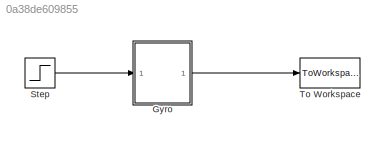
MODEL slx_0a38de609855
KIND model
CONFIG AbsTol = auto
CONFIG EnableMultiTasking = off
CONFIG FixedStep = auto
CONFIG MaxStep = auto
CONFIG MinStep = auto
CONFIG RelTol = 1e-3
CONFIG SampleTimeConstraint = Unconstrained
CONFIG Solver = VariableStepAuto
CONFIG SolverName = VariableStepAuto
CONFIG StartTime = 0.0
CONFIG StopTime = 10.0
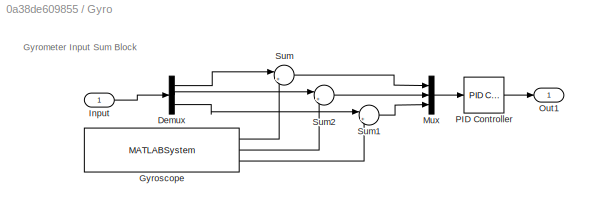
BLOCK [SubSystem] Gyro
  Ports = [1, 1]
  RequestExecContextInheritance = off
  Variant = off
BLOCK [Demux] Gyro/Demux
  DisplayOption = bar
  Outputs = 3
  Ports = [1, 3]
BLOCK [MATLABSystem] Gyro/Gyroscope
  DLPFmode = 0
  MaskDisplay = disp('soMPU6050Gyro');\nport_label('output',1,'xvel');\nport_label('output',2,'yvel');\nport_label('output',3,'zvel');
  MaskType = soMPU6050Gyro
  Ports = [0, 3]
  System = soMPU6050Gyro
BLOCK [Inport] Gyro/Input
  IconDisplay = Port number
BLOCK [Mux] Gyro/Mux
  DisplayOption = bar
  Inputs = 3
  Ports = [3, 1]
BLOCK [Outport] Gyro/Out1
  IconDisplay = Port number
BLOCK [Reference] Gyro/PID Controller  REF=simulink/Continuous/PID Controller
  Ports = [1, 1]
  SourceBlock = simulink/Continuous/PID Controller
  SourceProductBaseCode = SL
  SourceProductName = Simulink
  SourceType = PID 1dof
BLOCK [Sum] Gyro/Sum
  IconShape = round
  InputSameDT = off
  Inputs = |+-
  OutDataTypeStr = Inherit: Inherit via internal rule
  Ports = [2, 1]
  SaturateOnIntegerOverflow = off
BLOCK [Sum] Gyro/Sum1
  IconShape = round
  InputSameDT = off
  Inputs = |+-
  OutDataTypeStr = Inherit: Inherit via internal rule
  Ports = [2, 1]
  SaturateOnIntegerOverflow = off
BLOCK [Sum] Gyro/Sum2
  IconShape = round
  InputSameDT = off
  Inputs = |+-
  OutDataTypeStr = Inherit: Inherit via internal rule
  Ports = [2, 1]
  SaturateOnIntegerOverflow = off
BLOCK [Step] Step
  After = [1 2 3]
  SampleTime = 0
  Time = 5
BLOCK [ToWorkspace] To Workspace
  FixptAsFi = on
  MaxDataPoints = inf
  Ports = [1]
  SampleTime = -1
  Save2DSignal = 3-D array (concatenate along third dimension)
  SaveFormat = Timeseries
  VariableName = simout
ANNOTATION Gyro: Gyrometer Input Sum Block
LINE Gyro/Demux:1 -> Gyro/Sum:1
LINE Gyro/Demux:2 -> Gyro/Sum2:1
LINE Gyro/Demux:3 -> Gyro/Sum1:1
LINE Gyro/Gyroscope:1 -> Gyro/Sum:2
LINE Gyro/Gyroscope:2 -> Gyro/Sum2:2
LINE Gyro/Gyroscope:3 -> Gyro/Sum1:2
LINE Gyro/Input:1 -> Gyro/Demux:1
LINE Gyro/Mux:1 -> Gyro/PID Controller:1
LINE Gyro/PID Controller:1 -> Gyro/Out1:1
LINE Gyro/Sum1:1 -> Gyro/Mux:3
LINE Gyro/Sum2:1 -> Gyro/Mux:2
LINE Gyro/Sum:1 -> Gyro/Mux:1
LINE Gyro:1 -> To Workspace:1
LINE Step:1 -> Gyro:1
